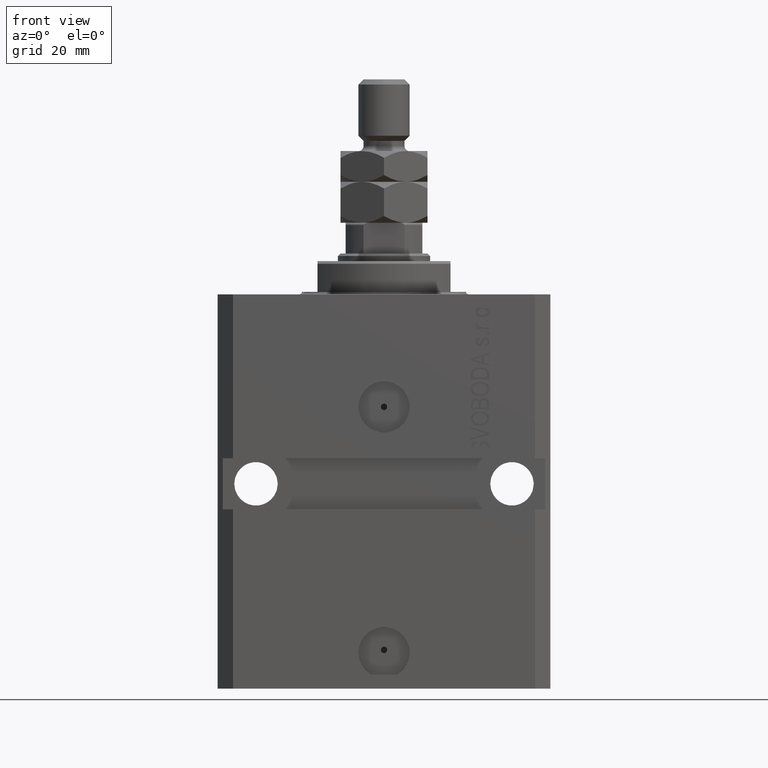
[diagram: clean part render]
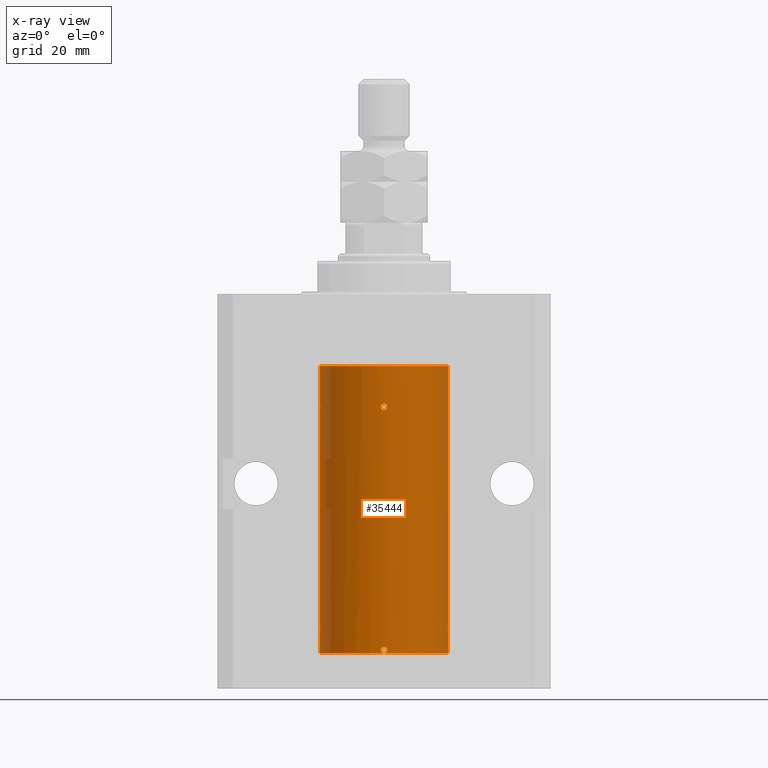
[diagram: x-ray — body ghosted, one internal face saturated and labeled with its STEP entity id]
A machine part, front view, then the same camera in x-ray: the body is ghosted and one INTERNAL B-rep face — a face not visible from any outside direction — is saturated and labeled: STEP entity #35444.
In plain terms, the highlighted cylindrical surface (partial cylindrical patch) has radius 12.5 mm, axis along (0, 0, 1).
Its self-contained STEP definition (entity closure, byte-faithful):
#115 = CARTESIAN_POINT ( 'NONE',  ( 12.50000000000000000, 0.000000000000000000, -70.09999999999999432 ) ) ;
#145 = CARTESIAN_POINT ( 'NONE',  ( 0.1636982395582734229, -12.49915742890632053, -70.08372397847031721 ) ) ;
#295 = CARTESIAN_POINT ( 'NONE',  ( -12.48435842450557942, -0.6251357828644855674, -21.83560799371398886 ) ) ;
#399 = CARTESIAN_POINT ( 'NONE',  ( 0.000000000000000000, 0.000000000000000000, -70.09999999999999432 ) ) ;
#839 = CARTESIAN_POINT ( 'NONE',  ( 1.470104640658484994E-15, -12.50000000000000000, -70.09999999999999432 ) ) ;
#1445 = AXIS2_PLACEMENT_3D ( 'NONE', #35962, #17606, #18067 ) ;
#1516 = EDGE_CURVE ( 'NONE', #36671, #19613, #29169, .T. ) ;
#1630 = LINE ( 'NONE', #34340, #22269 ) ;
#1799 = CARTESIAN_POINT ( 'NONE',  ( 0.6250000000080512264, -12.48436522214846001, -69.47499999999922693 ) ) ;
#2261 = EDGE_CURVE ( 'NONE', #19613, #38713, #36032, .T. ) ;
#2334 = CARTESIAN_POINT ( 'NONE',  ( 0.4995290477189069378, -12.49014813577965732, -21.61562461405073421 ) ) ;
#2818 = ORIENTED_EDGE ( 'NONE', *, *, #19569, .T. ) ;
#2891 = VERTEX_POINT ( 'NONE', #14286 ) ;
#3260 = CARTESIAN_POINT ( 'NONE',  ( -0.3834811789276724170, -12.49425278195415423, -21.49962372461870785 ) ) ;
#3301 = DIRECTION ( 'NONE',  ( -0.000000000000000000, -0.000000000000000000, 1.000000000000000000 ) ) ;
#3302 = EDGE_CURVE ( 'NONE', #11907, #43623, #32348, .T. ) ;
#4031 = B_SPLINE_CURVE_WITH_KNOTS ( 'NONE', 3,
 ( #15114, #4055, #14878, #8049, #11822, #295, #18414, #43596, #7816, #25938 ),
 .UNSPECIFIED., .F., .F.,
 ( 4, 2, 2, 2, 4 ),
 ( 0.001954339881912776130, 0.002442813509249222061, 0.002931287136585667558, 0.003419760763922113488, 0.003908234391258559419 ),
 .UNSPECIFIED. ) ;
#4055 = CARTESIAN_POINT ( 'NONE',  ( -12.50000000000000178, -0.1631389274720966009, -22.62500000000016698 ) ) ;
#4154 = VERTEX_POINT ( 'NONE', #5845 ) ;
#4225 = CARTESIAN_POINT ( 'NONE',  ( -12.50000000000000000, 1.530808498934191521E-15, -70.09999999999999432 ) ) ;
#4634 = EDGE_CURVE ( 'NONE', #40026, #43623, #45430, .T. ) ;
#4849 = CARTESIAN_POINT ( 'NONE',  ( -12.48437204107163190, -0.6248637920779611665, -65.16542285240649335 ) ) ;
#5148 = DIRECTION ( 'NONE',  ( -0.000000000000000000, -0.000000000000000000, 1.000000000000000000 ) ) ;
#5317 = CARTESIAN_POINT ( 'NONE',  ( -12.49627279065598628, -0.3263143231498935593, -65.55740725890372289 ) ) ;
#5790 = CARTESIAN_POINT ( 'NONE',  ( 0.6249999999998496758, -12.48436522214886857, -69.39345217010018985 ) ) ;
#5845 = CARTESIAN_POINT ( 'NONE',  ( -12.50000000000017941, 3.883381646606358354E-13, -22.62500000000358824 ) ) ;
#5990 = EDGE_CURVE ( 'NONE', #21901, #41868, #13838, .T. ) ;
#6094 = ORIENTED_EDGE ( 'NONE', *, *, #11736, .T. ) ;
#6365 = EDGE_CURVE ( 'NONE', #26037, #15543, #40011, .T. ) ;
#6623 = CARTESIAN_POINT ( 'NONE',  ( 12.50000000000000000, -6.043189914290669986E-17, -22.62500000000000000 ) ) ;
#6701 = EDGE_CURVE ( 'NONE', #40016, #11907, #31952, .T. ) ;
#7816 = CARTESIAN_POINT ( 'NONE',  ( -12.50000000000000178, -0.1651708725692886126, -21.37499999999999645 ) ) ;
#7916 = CYLINDRICAL_SURFACE ( 'NONE', #14442, 12.50000000000000000 ) ;
#8049 = CARTESIAN_POINT ( 'NONE',  ( -12.48811925907523879, -0.5569488909189486137, -22.32709604503179079 ) ) ;
#8125 = CARTESIAN_POINT ( 'NONE',  ( -0.6250000000000026645, -12.48436522214885969, -69.63984350486184383 ) ) ;
#8371 = CARTESIAN_POINT ( 'NONE',  ( -12.49625500642808262, -0.3269795983093126690, -64.44293326880233508 ) ) ;
#8489 = CARTESIAN_POINT ( 'NONE',  ( -12.50000000000000000, 1.530808498934191521E-15, -13.99999999999999822 ) ) ;
#8600 = CARTESIAN_POINT ( 'NONE',  ( -12.48811925907523879, -0.5569488909189596049, -65.32709604503179435 ) ) ;
#9172 = EDGE_CURVE ( 'NONE', #34023, #15543, #34276, .T. ) ;
#9539 = CARTESIAN_POINT ( 'NONE',  ( 0.1629224624750973960, -12.50000332393458891, -68.84993352130271660 ) ) ;
#9612 = CARTESIAN_POINT ( 'NONE',  ( -0.1632543323367347532, -12.49916307336598287, -21.39116441262433099 ) ) ;
#9626 = CARTESIAN_POINT ( 'NONE',  ( -12.50000000000000000, -2.089494013101375120E-17, -21.37499999999999645 ) ) ;
#10079 = CARTESIAN_POINT ( 'NONE',  ( -12.50000000000000000, 1.530808498934191521E-15, -70.09999999999999432 ) ) ;
#10194 = DIRECTION ( 'NONE',  ( 0.000000000000000000, 0.000000000000000000, 1.000000000000000000 ) ) ;
#10397 = CARTESIAN_POINT ( 'NONE',  ( 0.6250000000080512264, -12.48436522214846001, -69.47499999999922693 ) ) ;
#10543 = CARTESIAN_POINT ( 'NONE',  ( 12.48436522214885436, -0.6250000000001653122, -22.00000000000000000 ) ) ;
#10564 = EDGE_CURVE ( 'NONE', #4154, #44137, #4031, .T. ) ;
#10626 = CARTESIAN_POINT ( 'NONE',  ( 12.48436522214885436, -0.6250000000001653122, -22.16484350486186727 ) ) ;
#10868 = EDGE_CURVE ( 'NONE', #38713, #4154, #1630, .T. ) ;
#10998 = VERTEX_POINT ( 'NONE', #10543 ) ;
#11092 = B_SPLINE_CURVE_WITH_KNOTS ( 'NONE', 3,
 ( #38899, #35134, #13946, #17937, #45943, #13708, #32291, #28305, #42666, #42189 ),
 .UNSPECIFIED., .F., .F.,
 ( 4, 2, 2, 2, 4 ),
 ( 0.001954339857564081195, 0.002442813476812580147, 0.002931287096061078665, 0.003419760715309577617, 0.003908234334558076568 ),
 .UNSPECIFIED. ) ;
#11198 = CARTESIAN_POINT ( 'NONE',  ( -0.3268155536464903976, -12.49625914831439921, -70.03213681627768494 ) ) ;
#11489 = ORIENTED_EDGE ( 'NONE', *, *, #6701, .F. ) ;
#11672 = CARTESIAN_POINT ( 'NONE',  ( -0.5573321180046024725, -12.48810161786719242, -69.80148238604530775 ) ) ;
#11736 = EDGE_CURVE ( 'NONE', #13755, #40409, #34877, .T. ) ;
#11822 = CARTESIAN_POINT ( 'NONE',  ( -12.48437204107163190, -0.6248637920779505084, -22.16542285240648624 ) ) ;
#11907 = VERTEX_POINT ( 'NONE', #36901 ) ;
#11918 = CARTESIAN_POINT ( 'NONE',  ( -12.50000000000017941, 3.883381774819353300E-13, -65.62500000000359535 ) ) ;
#11929 = B_SPLINE_CURVE_WITH_KNOTS ( 'NONE', 3,
 ( #22477, #22940, #40848, #37311, #30928, #38010 ),
 .UNSPECIFIED., .F., .F.,
 ( 4, 2, 4 ),
 ( 0.001954339881912461711, 0.002443067948757210103, 0.002931796015601958062 ),
 .UNSPECIFIED. ) ;
#11933 = CARTESIAN_POINT ( 'NONE',  ( -0.6250000000036063375, -12.48436522214868383, -21.99999999999969447 ) ) ;
#12619 = CARTESIAN_POINT ( 'NONE',  ( -0.6250000000000027756, -12.48436522214886502, -69.31002761350272579 ) ) ;
#12849 = CARTESIAN_POINT ( 'NONE',  ( 0.3251408448057629963, -12.49631649875954764, -68.91629557722380639 ) ) ;
#13041 = EDGE_CURVE ( 'NONE', #40016, #21901, #29119, .T. ) ;
#13082 = CARTESIAN_POINT ( 'NONE',  ( 0.5002336959535146343, -12.49012317397092886, -69.09133113277157179 ) ) ;
#13155 = CARTESIAN_POINT ( 'NONE',  ( -0.08132084456756884239, -12.50000145133807550, -21.37497097323671014 ) ) ;
#13484 = CARTESIAN_POINT ( 'NONE',  ( 12.48436522214885436, -0.6250000000001719735, -65.00000000000000000 ) ) ;
#13708 = CARTESIAN_POINT ( 'NONE',  ( 0.1643920345763580093, -12.50000678895248107, -22.62513577909574636 ) ) ;
#13755 = VERTEX_POINT ( 'NONE', #27744 ) ;
#13838 = B_SPLINE_CURVE_WITH_KNOTS ( 'NONE', 3,
 ( #1799, #5790, #23205, #20143, #13082, #12849, #9539, #38043, #44855, #24114, #12619, #19915 ),
 .UNSPECIFIED., .F., .F.,
 ( 4, 2, 2, 2, 2, 4 ),
 ( 0.0009773924225144256777, 0.001221692871650375710, 0.001465993320786325958, 0.001954594219058255079, 0.002443195117330184199, 0.002931796015602113753 ),
 .UNSPECIFIED. ) ;
#13946 = CARTESIAN_POINT ( 'NONE',  ( -0.5574072998201419216, -12.48809731436987747, -22.32631425440896322 ) ) ;
#14185 = B_SPLINE_CURVE_WITH_KNOTS ( 'NONE', 3,
 ( #19306, #33670, #44477, #26590, #23065, #36160 ),
 .UNSPECIFIED., .F., .F.,
 ( 4, 2, 4 ),
 ( 0.001954339881912444798, 0.002443067948757185817, 0.002931796015601927270 ),
 .UNSPECIFIED. ) ;
#14286 = CARTESIAN_POINT ( 'NONE',  ( 12.50000000000017941, 3.868073689162038701E-13, -64.37499999999640465 ) ) ;
#14333 = ORIENTED_EDGE ( 'NONE', *, *, #29141, .T. ) ;
#14442 = AXIS2_PLACEMENT_3D ( 'NONE', #399, #32630, #29802 ) ;
#14731 = CARTESIAN_POINT ( 'NONE',  ( 0.6250000000080512264, -12.48436522214846001, -69.47499999999922693 ) ) ;
#14878 = CARTESIAN_POINT ( 'NONE',  ( -12.49627279065598628, -0.3263143231498885077, -22.55740725890368736 ) ) ;
#15114 = CARTESIAN_POINT ( 'NONE',  ( -12.50000000000017941, 3.883381646606358354E-13, -22.62500000000358824 ) ) ;
#15230 = DIRECTION ( 'NONE',  ( 0.000000000000000000, 0.000000000000000000, 1.000000000000000000 ) ) ;
#15332 = CARTESIAN_POINT ( 'NONE',  ( -12.50000000000000000, -1.053276923642966949E-14, -64.37500000000000000 ) ) ;
#15478 = EDGE_CURVE ( 'NONE', #2891, #46516, #16362, .T. ) ;
#15543 = VERTEX_POINT ( 'NONE', #45751 ) ;
#16298 = EDGE_CURVE ( 'NONE', #36671, #40016, #33666, .T. ) ;
#16362 = LINE ( 'NONE', #37785, #29965 ) ;
#16687 = CARTESIAN_POINT ( 'NONE',  ( 0.3265259744707224576, -12.49626742995426376, -21.44268445620963348 ) ) ;
#17146 = CARTESIAN_POINT ( 'NONE',  ( -0.6249999999998608891, -12.48436522214887034, -21.83682388509806316 ) ) ;
#17606 = DIRECTION ( 'NONE',  ( 0.000000000000000000, 0.000000000000000000, 1.000000000000000000 ) ) ;
#17937 = CARTESIAN_POINT ( 'NONE',  ( -0.3270961104548176790, -12.49625086038168931, -22.55694885317108600 ) ) ;
#18067 = DIRECTION ( 'NONE',  ( 1.000000000000000000, 0.000000000000000000, 0.000000000000000000 ) ) ;
#18257 = CARTESIAN_POINT ( 'NONE',  ( 0.08262306818364176242, -12.50000000000000000, -70.09999999999999432 ) ) ;
#18304 = ORIENTED_EDGE ( 'NONE', *, *, #15478, .F. ) ;
#18414 = CARTESIAN_POINT ( 'NONE',  ( -12.48809300548636081, -0.5575284115737433321, -21.67380822970859811 ) ) ;
#19206 = CARTESIAN_POINT ( 'NONE',  ( -12.50000000000000000, -1.053276923642966949E-14, -64.37500000000000000 ) ) ;
#19306 = CARTESIAN_POINT ( 'NONE',  ( 12.50000000000017941, 3.868073565084946818E-13, -21.37499999999641176 ) ) ;
#19569 = EDGE_CURVE ( 'NONE', #41868, #40016, #45685, .T. ) ;
#19613 = VERTEX_POINT ( 'NONE', #39916 ) ;
#19915 = CARTESIAN_POINT ( 'NONE',  ( -0.6250000000000025535, -12.48436522214886324, -69.47499999999999432 ) ) ;
#20143 = CARTESIAN_POINT ( 'NONE',  ( 0.5460961315382516501, -12.48810487413754444, -69.16017824283937898 ) ) ;
#20215 = CARTESIAN_POINT ( 'NONE',  ( 0.6087318085567836601, -12.48520854404103630, -21.83633981484414122 ) ) ;
#20405 = EDGE_CURVE ( 'NONE', #26037, #10998, #14185, .T. ) ;
#20899 = DIRECTION ( 'NONE',  ( -0.000000000000000000, -0.000000000000000000, 1.000000000000000000 ) ) ;
#21245 = CARTESIAN_POINT ( 'NONE',  ( -0.6250000000000025535, -12.48436522214886324, -69.47499999999999432 ) ) ;
#21901 = VERTEX_POINT ( 'NONE', #10397 ) ;
#22245 = CARTESIAN_POINT ( 'NONE',  ( -0.6250000000000025535, -12.48436522214886324, -69.47499999999999432 ) ) ;
#22248 = CARTESIAN_POINT ( 'NONE',  ( 0.3151108292487665996, -12.49625698805480845, -70.02093695688176922 ) ) ;
#22269 = VECTOR ( 'NONE', #27032, 1000.000000000000000 ) ;
#22477 = CARTESIAN_POINT ( 'NONE',  ( 12.50000000000017941, 3.868073689162038701E-13, -64.37499999999640465 ) ) ;
#22478 = CARTESIAN_POINT ( 'NONE',  ( -0.1650848372272839815, -12.50000000000000178, -70.10000000000000853 ) ) ;
#22519 = DIRECTION ( 'NONE',  ( 1.000000000000000000, 0.000000000000000000, 0.000000000000000000 ) ) ;
#22940 = CARTESIAN_POINT ( 'NONE',  ( 12.50000000000000355, -0.1632239044005776296, -64.37499999999977263 ) ) ;
#22959 = CARTESIAN_POINT ( 'NONE',  ( -12.48435842450557942, -0.6251357828645015546, -64.83560799371397820 ) ) ;
#23065 = CARTESIAN_POINT ( 'NONE',  ( 12.48436522214885791, -0.6250000000001654232, -21.83498467599887505 ) ) ;
#23205 = CARTESIAN_POINT ( 'NONE',  ( 0.6087772866342635592, -12.48520622767670574, -69.31152541805840883 ) ) ;
#23798 = EDGE_CURVE ( 'NONE', #10998, #46516, #43739, .T. ) ;
#23947 = CARTESIAN_POINT ( 'NONE',  ( 12.48436522214885436, -0.6250000000001719735, -65.00000000000000000 ) ) ;
#23975 = ORIENTED_EDGE ( 'NONE', *, *, #4634, .T. ) ;
#24114 = CARTESIAN_POINT ( 'NONE',  ( -0.5571821530518563659, -12.48810851326189031, -69.14827784464195304 ) ) ;
#24289 = CARTESIAN_POINT ( 'NONE',  ( 12.49625914831439744, -0.3268155536465563449, -65.55713681627779010 ) ) ;
#24295 = DIRECTION ( 'NONE',  ( 1.000000000000000000, 0.000000000000000000, 0.000000000000000000 ) ) ;
#24968 = CARTESIAN_POINT ( 'NONE',  ( 12.50000000000000178, -0.1650848372273132358, -22.62500000000004263 ) ) ;
#25253 = AXIS2_PLACEMENT_3D ( 'NONE', #31370, #10194, #24295 ) ;
#25454 = CARTESIAN_POINT ( 'NONE',  ( -12.50000000000000000, 1.530808498934191521E-15, -70.09999999999999432 ) ) ;
#25938 = CARTESIAN_POINT ( 'NONE',  ( -12.50000000000000000, -2.089494013101375120E-17, -21.37499999999999645 ) ) ;
#26037 = VERTEX_POINT ( 'NONE', #31664 ) ;
#26264 = CARTESIAN_POINT ( 'NONE',  ( -12.50000000000000178, -0.1631389274720982940, -65.62500000000014211 ) ) ;
#26590 = CARTESIAN_POINT ( 'NONE',  ( 12.48811067843434230, -0.5571444604331968753, -21.67319321899357121 ) ) ;
#26791 = EDGE_CURVE ( 'NONE', #44137, #34023, #30801, .T. ) ;
#26917 = ORIENTED_EDGE ( 'NONE', *, *, #13041, .T. ) ;
#27032 = DIRECTION ( 'NONE',  ( -0.000000000000000000, -0.000000000000000000, 1.000000000000000000 ) ) ;
#27717 = ORIENTED_EDGE ( 'NONE', *, *, #23798, .T. ) ;
#27744 = CARTESIAN_POINT ( 'NONE',  ( 0.6250000000000017764, -12.48436522214886502, -22.00000000000000000 ) ) ;
#27837 = CARTESIAN_POINT ( 'NONE',  ( 12.48436522214885080, -0.6250000000001718625, -65.16484350486189214 ) ) ;
#28200 = CARTESIAN_POINT ( 'NONE',  ( 1.470104640658484994E-15, -12.50000000000000000, -70.09999999999999432 ) ) ;
#28305 = CARTESIAN_POINT ( 'NONE',  ( 0.5570667809667051440, -12.48811511264091934, -22.32697951956172844 ) ) ;
#28819 = DIRECTION ( 'NONE',  ( -0.000000000000000000, -0.000000000000000000, 1.000000000000000000 ) ) ;
#29088 = CARTESIAN_POINT ( 'NONE',  ( 0.6250000000003167466, -12.48436522214884725, -69.63812747540310966 ) ) ;
#29119 = B_SPLINE_CURVE_WITH_KNOTS ( 'NONE', 3,
 ( #29321, #18257, #145, #22248, #39919, #35920, #29088, #14731 ),
 .UNSPECIFIED., .F., .F.,
 ( 4, 2, 2, 4 ),
 ( 0.000000000000000000, 0.0002443481056286064194, 0.0004886962112572128389, 0.0009773924225144256777 ),
 .UNSPECIFIED. ) ;
#29141 = EDGE_CURVE ( 'NONE', #2891, #40026, #11929, .T. ) ;
#29169 = LINE ( 'NONE', #4225, #36400 ) ;
#29321 = CARTESIAN_POINT ( 'NONE',  ( 1.470104640658484994E-15, -12.50000000000000000, -70.09999999999999432 ) ) ;
#29802 = DIRECTION ( 'NONE',  ( 1.000000000000000000, 0.000000000000000000, 0.000000000000000000 ) ) ;
#29965 = VECTOR ( 'NONE', #45525, 1000.000000000000000 ) ;
#30801 = LINE ( 'NONE', #10079, #38542 ) ;
#30825 = ORIENTED_EDGE ( 'NONE', *, *, #2261, .T. ) ;
#30928 = CARTESIAN_POINT ( 'NONE',  ( 12.48436522214885613, -0.6250000000001719735, -64.83498467599889636 ) ) ;
#31035 = CARTESIAN_POINT ( 'NONE',  ( 0.1633100384313375397, -12.49999709136798032, -21.37505817264410979 ) ) ;
#31101 = VECTOR ( 'NONE', #28819, 1000.000000000000000 ) ;
#31370 = CARTESIAN_POINT ( 'NONE',  ( 0.000000000000000000, 0.000000000000000000, -13.99999999999999822 ) ) ;
#31498 = CARTESIAN_POINT ( 'NONE',  ( -0.5585674314229008841, -12.48806005752685344, -21.67463197640445571 ) ) ;
#31664 = CARTESIAN_POINT ( 'NONE',  ( 12.50000000000017941, 3.868073565084946818E-13, -21.37499999999641176 ) ) ;
#31952 = CIRCLE ( 'NONE', #44711, 12.50000000000000000 ) ;
#32111 = ORIENTED_EDGE ( 'NONE', *, *, #26791, .T. ) ;
#32291 = CARTESIAN_POINT ( 'NONE',  ( 0.3261918319691095580, -12.49627709975190015, -22.55752837903201424 ) ) ;
#32348 = LINE ( 'NONE', #115, #31101 ) ;
#32362 = ORIENTED_EDGE ( 'NONE', *, *, #3302, .F. ) ;
#32630 = DIRECTION ( 'NONE',  ( -0.000000000000000000, -0.000000000000000000, 1.000000000000000000 ) ) ;
#33335 = FACE_OUTER_BOUND ( 'NONE', #38320, .T. ) ;
#33666 = CIRCLE ( 'NONE', #1445, 12.50000000000000000 ) ;
#33670 = CARTESIAN_POINT ( 'NONE',  ( 12.50000000000000355, -0.1632239044005739104, -21.37499999999979750 ) ) ;
#34023 = VERTEX_POINT ( 'NONE', #8489 ) ;
#34276 = CIRCLE ( 'NONE', #25253, 12.50000000000000000 ) ;
#34340 = CARTESIAN_POINT ( 'NONE',  ( -12.50000000000000000, 1.530808498934191521E-15, -70.09999999999999432 ) ) ;
#34579 = CARTESIAN_POINT ( 'NONE',  ( 0.5459720203952235229, -12.48811039973180748, -21.68495456851491454 ) ) ;
#34877 = B_SPLINE_CURVE_WITH_KNOTS ( 'NONE', 3,
 ( #41867, #38116, #20215, #34579, #2334, #16687, #31035, #13155, #9612, #37187, #3260, #31498, #17146, #45619 ),
 .UNSPECIFIED., .F., .F.,
 ( 4, 2, 2, 2, 2, 2, 4 ),
 ( 0.000000000000000000, 0.0002442924821955120467, 0.0004885849643910240934, 0.0009771699287820408142, 0.001221462410977549283, 0.001465754893173057318, 0.001954339857564081195 ),
 .UNSPECIFIED. ) ;
#35065 = ORIENTED_EDGE ( 'NONE', *, *, #5990, .T. ) ;
#35134 = CARTESIAN_POINT ( 'NONE',  ( -0.6250000000001363354, -12.48436522214885258, -22.16313892819009013 ) ) ;
#35258 = CARTESIAN_POINT ( 'NONE',  ( 0.000000000000000000, 0.000000000000000000, -70.09999999999999432 ) ) ;
#35444 = ADVANCED_FACE ( 'NONE', ( #36638, #33335 ), #7916, .F. ) ;
#35920 = CARTESIAN_POINT ( 'NONE',  ( 0.5573988467447082984, -12.48809900631781034, -69.80140147935480854 ) ) ;
#35962 = CARTESIAN_POINT ( 'NONE',  ( 0.000000000000000000, 0.000000000000000000, -70.09999999999999432 ) ) ;
#36003 = ORIENTED_EDGE ( 'NONE', *, *, #6365, .F. ) ;
#36032 = B_SPLINE_CURVE_WITH_KNOTS ( 'NONE', 3,
 ( #11918, #26264, #5317, #8600, #4849, #22959, #40642, #8371, #37329, #19206 ),
 .UNSPECIFIED., .F., .F.,
 ( 4, 2, 2, 2, 4 ),
 ( 0.001954339881912786538, 0.002442813509249238107, 0.002931287136585690109, 0.003419760763922141678, 0.003908234391258593246 ),
 .UNSPECIFIED. ) ;
#36160 = CARTESIAN_POINT ( 'NONE',  ( 12.48436522214885436, -0.6250000000001653122, -22.00000000000000000 ) ) ;
#36400 = VECTOR ( 'NONE', #5148, 1000.000000000000000 ) ;
#36638 = FACE_BOUND ( 'NONE', #39986, .T. ) ;
#36671 = VERTEX_POINT ( 'NONE', #25454 ) ;
#36836 = CARTESIAN_POINT ( 'NONE',  ( 12.50000000000000000, -6.043189914290669986E-17, -22.62500000000000000 ) ) ;
#36901 = CARTESIAN_POINT ( 'NONE',  ( 12.50000000000000000, 0.000000000000000000, -70.09999999999999432 ) ) ;
#37187 = CARTESIAN_POINT ( 'NONE',  ( -0.3146137485037712733, -12.49626935132541306, -21.45378489701016633 ) ) ;
#37311 = CARTESIAN_POINT ( 'NONE',  ( 12.48811067843434230, -0.5571444604332078665, -64.67319321899357476 ) ) ;
#37329 = CARTESIAN_POINT ( 'NONE',  ( -12.50000000000000178, -0.1651708725692960789, -64.37500000000000000 ) ) ;
#37651 = ORIENTED_EDGE ( 'NONE', *, *, #38630, .T. ) ;
#37785 = CARTESIAN_POINT ( 'NONE',  ( 12.50000000000000000, 0.000000000000000000, -70.09999999999999432 ) ) ;
#37874 = ORIENTED_EDGE ( 'NONE', *, *, #1516, .T. ) ;
#38010 = CARTESIAN_POINT ( 'NONE',  ( 12.48436522214885436, -0.6250000000001719735, -65.00000000000000000 ) ) ;
#38043 = CARTESIAN_POINT ( 'NONE',  ( -0.1634321124498647193, -12.49999667087055499, -68.85006658259450774 ) ) ;
#38116 = CARTESIAN_POINT ( 'NONE',  ( 0.6250000000000018874, -12.48436522214886324, -21.91739573630514926 ) ) ;
#38320 = EDGE_LOOP ( 'NONE', ( #44083, #37874, #30825, #41255, #45297, #32111, #40902, #36003, #41207, #27717, #18304, #14333, #23975, #32362, #11489, #26917, #35065, #2818 ) ) ;
#38542 = VECTOR ( 'NONE', #20899, 1000.000000000000000 ) ;
#38630 = EDGE_CURVE ( 'NONE', #40409, #13755, #11092, .T. ) ;
#38713 = VERTEX_POINT ( 'NONE', #15332 ) ;
#38881 = CARTESIAN_POINT ( 'NONE',  ( 12.49625914831439744, -0.3268155536465573996, -22.55713681627777234 ) ) ;
#38899 = CARTESIAN_POINT ( 'NONE',  ( -0.6250000000036063375, -12.48436522214868383, -21.99999999999969447 ) ) ;
#39607 = CARTESIAN_POINT ( 'NONE',  ( 12.50000000000000178, -0.1650848372273117926, -65.62500000000004263 ) ) ;
#39916 = CARTESIAN_POINT ( 'NONE',  ( -12.50000000000017941, 3.883381774819353300E-13, -65.62500000000359535 ) ) ;
#39919 = CARTESIAN_POINT ( 'NONE',  ( 0.3844519291904487934, -12.49421963472024188, -69.97447303647051342 ) ) ;
#39986 = EDGE_LOOP ( 'NONE', ( #6094, #37651 ) ) ;
#40011 = LINE ( 'NONE', #42611, #43177 ) ;
#40016 = VERTEX_POINT ( 'NONE', #28200 ) ;
#40026 = VERTEX_POINT ( 'NONE', #23947 ) ;
#40409 = VERTEX_POINT ( 'NONE', #11933 ) ;
#40642 = CARTESIAN_POINT ( 'NONE',  ( -12.48809300548636081, -0.5575284115737590973, -64.67380822970859811 ) ) ;
#40848 = CARTESIAN_POINT ( 'NONE',  ( 12.49626862995824261, -0.3264790874448512681, -64.44266345233398852 ) ) ;
#40902 = ORIENTED_EDGE ( 'NONE', *, *, #9172, .T. ) ;
#41207 = ORIENTED_EDGE ( 'NONE', *, *, #20405, .T. ) ;
#41255 = ORIENTED_EDGE ( 'NONE', *, *, #10868, .T. ) ;
#41867 = CARTESIAN_POINT ( 'NONE',  ( 0.6250000000000017764, -12.48436522214886502, -22.00000000000000000 ) ) ;
#41868 = VERTEX_POINT ( 'NONE', #21245 ) ;
#42189 = CARTESIAN_POINT ( 'NONE',  ( 0.6250000000000017764, -12.48436522214886502, -22.00000000000000000 ) ) ;
#42197 = CARTESIAN_POINT ( 'NONE',  ( 12.48810161786718709, -0.5573321180047424717, -65.32648238604538449 ) ) ;
#42611 = CARTESIAN_POINT ( 'NONE',  ( 12.50000000000000000, 0.000000000000000000, -70.09999999999999432 ) ) ;
#42666 = CARTESIAN_POINT ( 'NONE',  ( 0.6250000000000018874, -12.48436522214886502, -22.16517087750612092 ) ) ;
#42877 = CARTESIAN_POINT ( 'NONE',  ( 12.48810161786718709, -0.5573321180047412504, -22.32648238604535251 ) ) ;
#43177 = VECTOR ( 'NONE', #3301, 1000.000000000000000 ) ;
#43358 = CARTESIAN_POINT ( 'NONE',  ( 12.50000000000000000, -1.836039810331332019E-15, -65.62500000000000000 ) ) ;
#43596 = CARTESIAN_POINT ( 'NONE',  ( -12.49625500642808262, -0.3269795983092943503, -21.44293326880232087 ) ) ;
#43623 = VERTEX_POINT ( 'NONE', #44136 ) ;
#43739 = B_SPLINE_CURVE_WITH_KNOTS ( 'NONE', 3,
 ( #46392, #10626, #42877, #38881, #24968, #6623 ),
 .UNSPECIFIED., .F., .F.,
 ( 4, 2, 4 ),
 ( 0.002931796015601927270, 0.003420015203430243778, 0.003908234391258560286 ),
 .UNSPECIFIED. ) ;
#44083 = ORIENTED_EDGE ( 'NONE', *, *, #16298, .F. ) ;
#44136 = CARTESIAN_POINT ( 'NONE',  ( 12.50000000000000000, -1.836039810331332019E-15, -65.62500000000000000 ) ) ;
#44137 = VERTEX_POINT ( 'NONE', #9626 ) ;
#44477 = CARTESIAN_POINT ( 'NONE',  ( 12.49626862995824261, -0.3264790874448412761, -21.44266345233396720 ) ) ;
#44711 = AXIS2_PLACEMENT_3D ( 'NONE', #35258, #15230, #22519 ) ;
#44855 = CARTESIAN_POINT ( 'NONE',  ( -0.3266214369556185715, -12.49626442692393979, -68.91775879961872420 ) ) ;
#45297 = ORIENTED_EDGE ( 'NONE', *, *, #10564, .T. ) ;
#45430 = B_SPLINE_CURVE_WITH_KNOTS ( 'NONE', 3,
 ( #13484, #27837, #42197, #24289, #39607, #43358 ),
 .UNSPECIFIED., .F., .F.,
 ( 4, 2, 4 ),
 ( 0.002931796015601958062, 0.003420015203430274570, 0.003908234391258590644 ),
 .UNSPECIFIED. ) ;
#45525 = DIRECTION ( 'NONE',  ( -0.000000000000000000, -0.000000000000000000, 1.000000000000000000 ) ) ;
#45619 = CARTESIAN_POINT ( 'NONE',  ( -0.6250000000036063375, -12.48436522214868383, -21.99999999999969447 ) ) ;
#45685 = B_SPLINE_CURVE_WITH_KNOTS ( 'NONE', 3,
 ( #22245, #8125, #11672, #11198, #22478, #839 ),
 .UNSPECIFIED., .F., .F.,
 ( 4, 2, 4 ),
 ( 0.002931796015602113753, 0.003420015203430352198, 0.003908234391258590644 ),
 .UNSPECIFIED. ) ;
#45751 = CARTESIAN_POINT ( 'NONE',  ( 12.50000000000000000, 0.000000000000000000, -13.99999999999999822 ) ) ;
#45943 = CARTESIAN_POINT ( 'NONE',  ( -0.1654228519529012675, -12.49999318979582874, -22.62486379587040020 ) ) ;
#46392 = CARTESIAN_POINT ( 'NONE',  ( 12.48436522214885436, -0.6250000000001653122, -22.00000000000000000 ) ) ;
#46516 = VERTEX_POINT ( 'NONE', #36836 ) ;